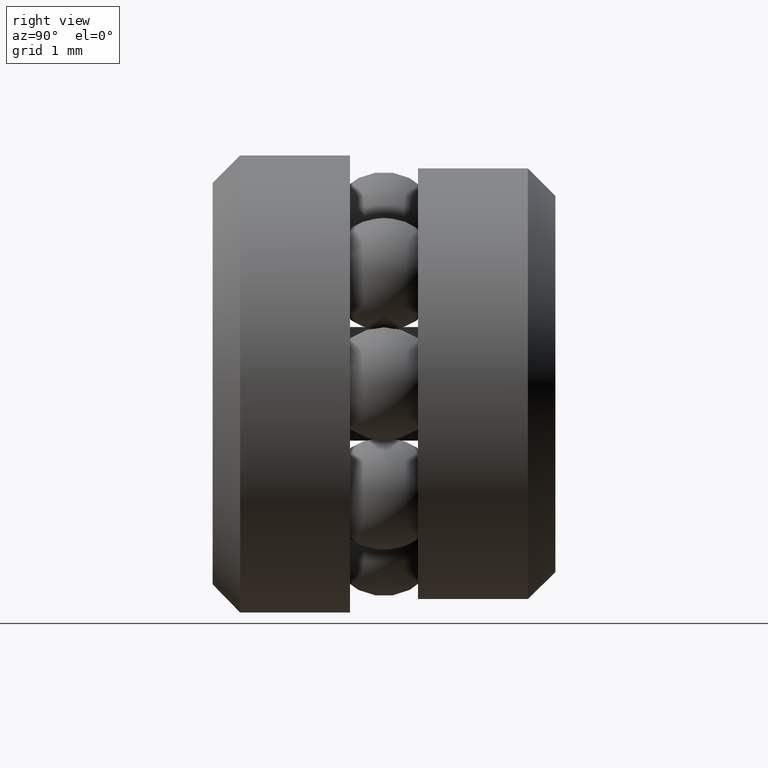
[diagram: clean part render]
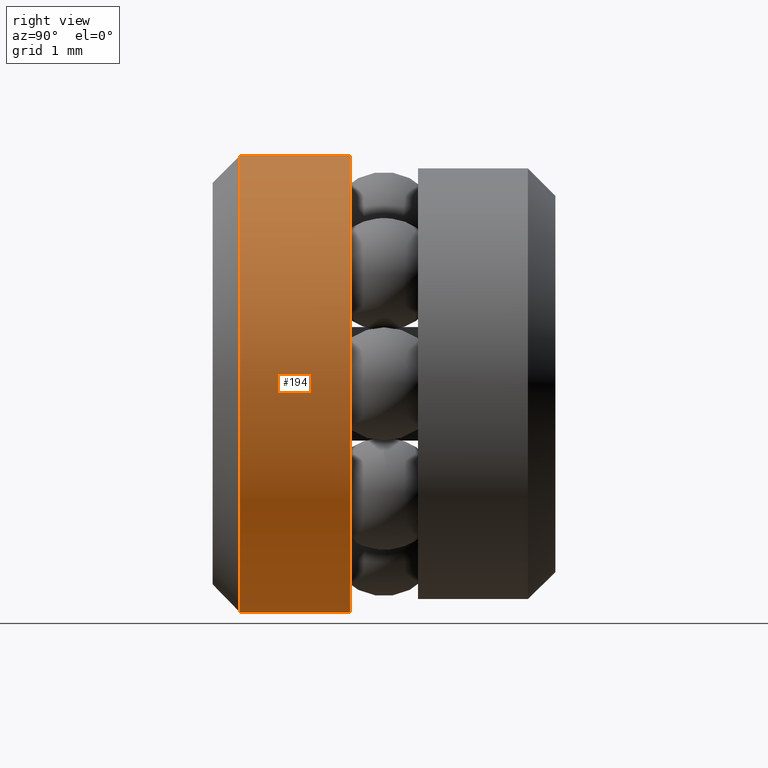
[diagram: same view with one face highlighted and labeled with its STEP entity id]
A machine part, right view. The second image highlights one B-rep face of the part: STEP entity #194.
In plain terms, the highlighted cylindrical surface (bore or boss wall) has radius 3.175 mm, axis along (-0, 1, -0).
Its self-contained STEP definition (entity closure, byte-faithful):
#23 = CYLINDRICAL_SURFACE ( 'NONE', #316, 0.1250000000000000300 ) ;
#31 = VERTEX_POINT ( 'NONE', #201 ) ;
#72 = EDGE_CURVE ( 'NONE', #31, #31, #267, .T. ) ;
#78 = DIRECTION ( 'NONE',  ( 0.0000000000000000000, 0.0000000000000000000, 1.000000000000000000 ) ) ;
#123 = AXIS2_PLACEMENT_3D ( 'NONE', #500, #246, #411 ) ;
#160 = AXIS2_PLACEMENT_3D ( 'NONE', #423, #379, #78 ) ;
#194 = ADVANCED_FACE ( 'NONE', ( #319, #327 ), #23, .T. ) ;
#199 = DIRECTION ( 'NONE',  ( 0.0000000000000000000, 0.0000000000000000000, 1.000000000000000000 ) ) ;
#201 = CARTESIAN_POINT ( 'NONE',  ( 0.0000000000000000000, 0.01499999999999989400, 0.1250000000000000300 ) ) ;
#210 = EDGE_CURVE ( 'NONE', #294, #294, #393, .T. ) ;
#246 = DIRECTION ( 'NONE',  ( -0.0000000000000000000, 1.000000000000000000, -0.0000000000000000000 ) ) ;
#251 = EDGE_LOOP ( 'NONE', ( #396 ) ) ;
#267 = CIRCLE ( 'NONE', #160, 0.1250000000000000300 ) ;
#276 = CARTESIAN_POINT ( 'NONE',  ( 0.0000000000000000000, 0.07515000000000014700, 0.1250000000000000300 ) ) ;
#294 = VERTEX_POINT ( 'NONE', #276 ) ;
#316 = AXIS2_PLACEMENT_3D ( 'NONE', #458, #321, #199 ) ;
#319 = FACE_OUTER_BOUND ( 'NONE', #454, .T. ) ;
#321 = DIRECTION ( 'NONE',  ( -0.0000000000000000000, 1.000000000000000000, -0.0000000000000000000 ) ) ;
#327 = FACE_OUTER_BOUND ( 'NONE', #251, .T. ) ;
#351 = ORIENTED_EDGE ( 'NONE', *, *, #72, .T. ) ;
#379 = DIRECTION ( 'NONE',  ( -0.0000000000000000000, 1.000000000000000000, -0.0000000000000000000 ) ) ;
#393 = CIRCLE ( 'NONE', #123, 0.1250000000000000300 ) ;
#396 = ORIENTED_EDGE ( 'NONE', *, *, #210, .F. ) ;
#411 = DIRECTION ( 'NONE',  ( 0.0000000000000000000, 0.0000000000000000000, 1.000000000000000000 ) ) ;
#423 = CARTESIAN_POINT ( 'NONE',  ( 0.0000000000000000000, 0.01499999999999989400, 0.0000000000000000000 ) ) ;
#454 = EDGE_LOOP ( 'NONE', ( #351 ) ) ;
#458 = CARTESIAN_POINT ( 'NONE',  ( 0.0000000000000000000, 0.0000000000000000000, 0.0000000000000000000 ) ) ;
#500 = CARTESIAN_POINT ( 'NONE',  ( 0.0000000000000000000, 0.07515000000000014700, 0.0000000000000000000 ) ) ;